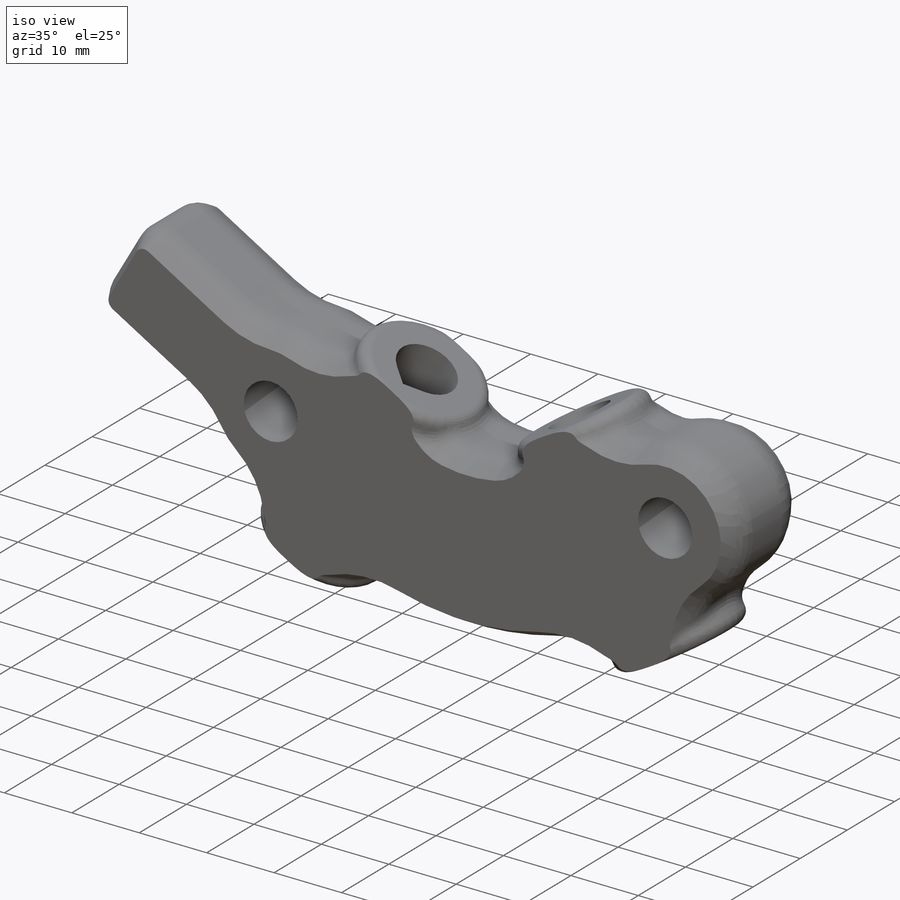
[diagram: iso view]
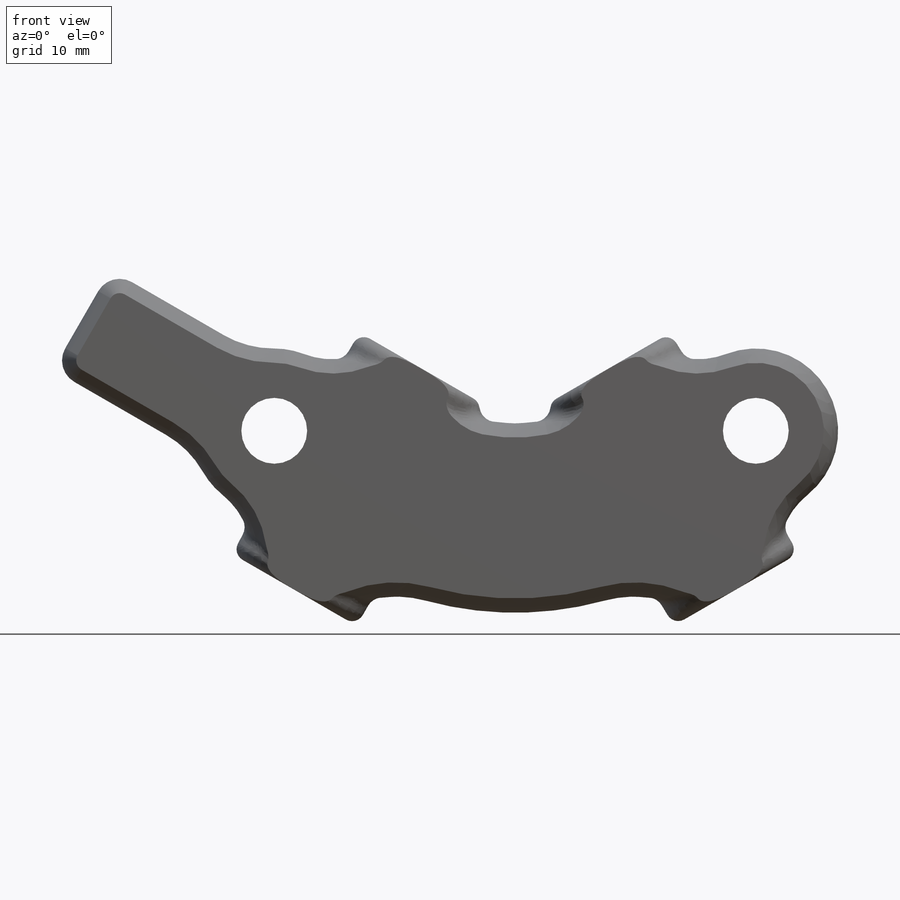
[diagram: front view]
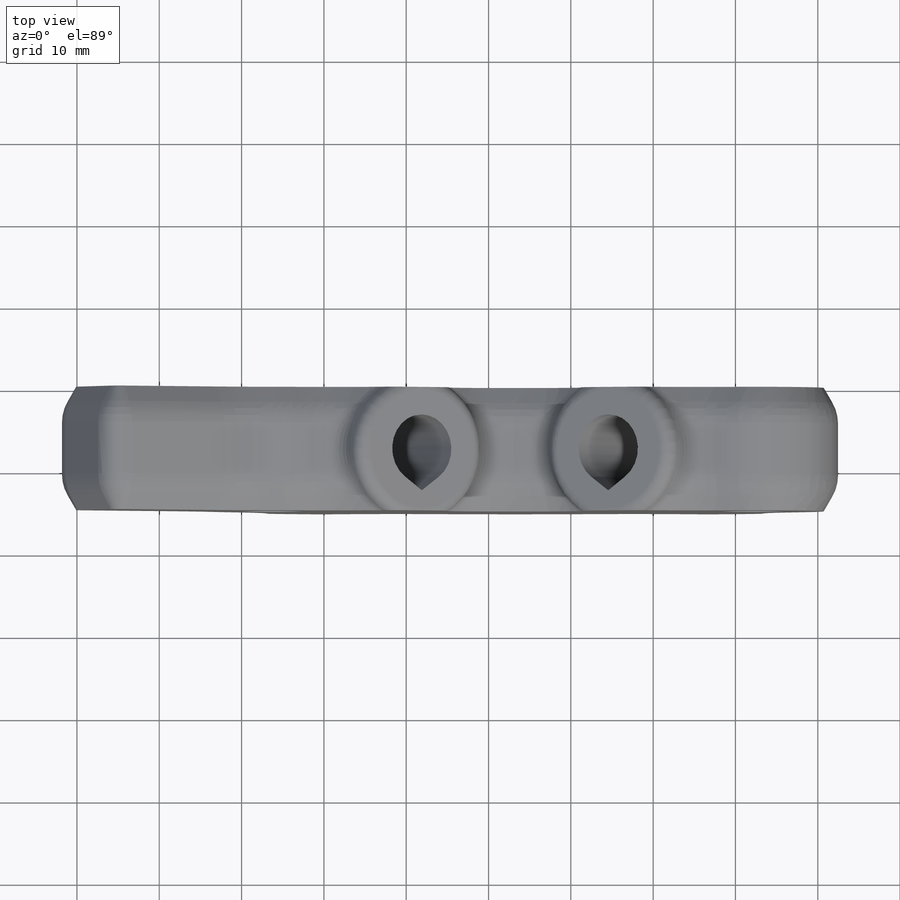
[diagram: top view]
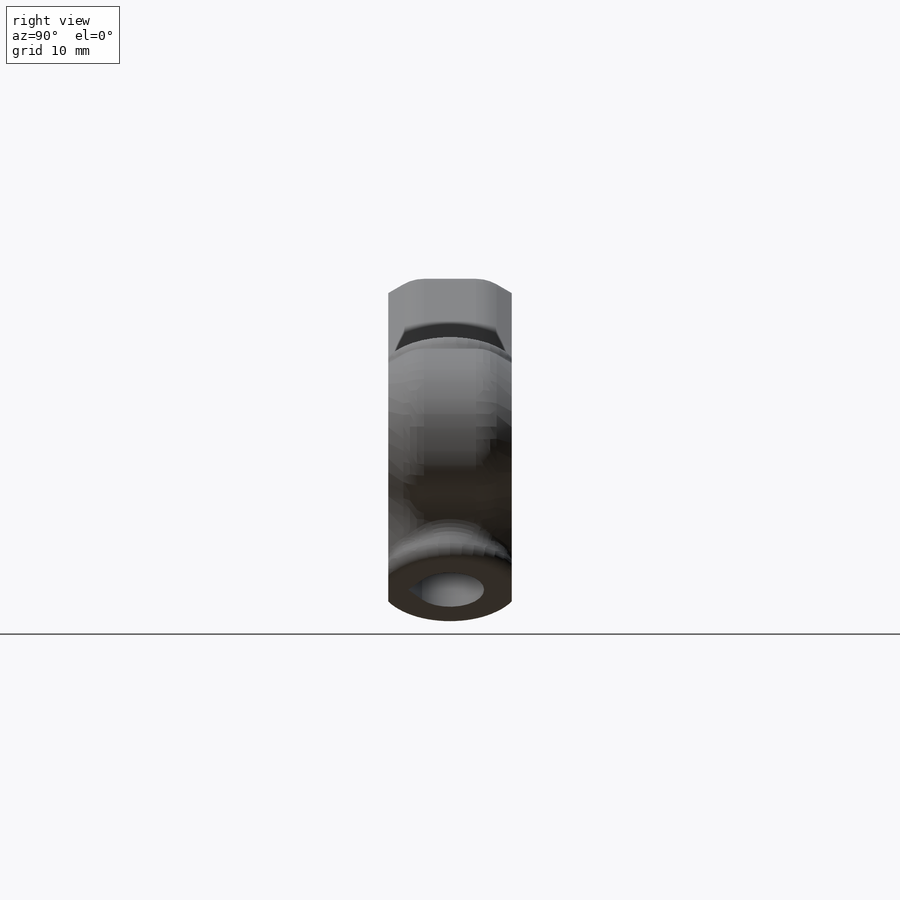
[diagram: right view]
SOLIDWORKS PART (.sldprt)
format: sldprt  version: not decoded by parser v0  size: 1,032,192 bytes
history: native  units: mm
features: sketch x8, extrude x4, fillet x3, cut_extrude x3, material x1, chamfer x1, plane x1, mirror x1 (+11 scaffold rows collapsed)
feature tree (33):
  scaffold x11  (default folders/planes/origin — collapsed)
  material  "Material <not specified>"
  sketch  "Sketch1"  dims[c1.D1=~10.214344mm c1.D3=~5.774856mm c2.D1=~9.746572mm c2.D5=~1.84416mm c2.D2=~4.379489mm c3.D1=58.5mm c4.D1=90.0deg c5.D1=0.0mm c5.D2=0.0mm c5.D3=0.0mm c6.D1=16.0mm c6.D2=16.0mm c6.D3=1.0mm c6.D4=1.0mm c6.D5=4.15mm c6.D6=4.15mm c7.D1=2.0mm c7.D2=25.0mm c7.D3=2.0mm c7.D4=2.0mm c8.D2=1.0mm c8.D3=4.0mm]
  extrude  "Boss-Extrude1"  Depth=15mm
  sketch  "Sketch12"  dims[c1.D5=~6.107648mm c1.D2=~13.206888mm c2.D2=90.0deg c3.D2=~13.206888mm c3.D1=27.0mm c4.D2=7.0mm c4.D3=7.0mm c4.D4=27.0mm c4.D1=3.0mm c5.D2=3.0mm c5.D3=3.0mm]
  extrude  "Boss-Extrude4"  [1 undecoded]
  chamfer  "Chamfer1"  Distance=3mm Angle=30deg
  fillet  "Fillet1"  Radius=5mm
  sketch  "Sketch5"  dims[c1.D1=~1.16332mm c1.D2=4.15mm c2.D1=~2.936269mm c3.D1=35.0deg c3.D3=~2.380342mm c4.D3=35.0deg]
  cut_extrude  "Cut-Extrude2"  [1 undecoded]
  sketch  "Sketch6"  dims[D1=9.0mm]
  extrude  "Boss-Extrude2"  Depth=0.5mm
  sketch  "Sketch7"  dims[D1=0.0mm]
  cut_extrude  "Cut-Extrude3"  [1 undecoded]
  sketch  "Sketch9"  dims[D1=~6.075457mm]
  extrude  "Boss-Extrude3"  Depth=0.5mm
  sketch  "Sketch10"  dims[D1=0.0mm]
  cut_extrude  "Cut-Extrude4"  [1 undecoded]
  sketch  "Sketch11"
  plane  "Plane1"
  mirror  "Mirror1"
  fillet  "Fillet4"  Radius=1.5mm
  fillet  "Fillet5"  Radius=2mm
decode coverage: 14 of 20 modeling features carry decoded parameters
note: ~ marks probable driven/reference dimensions
note: 4 parameter values undecoded
summary: no parameter record found for 4 features
note: suppression state not decoded; provenance and decode notes live in map.json
